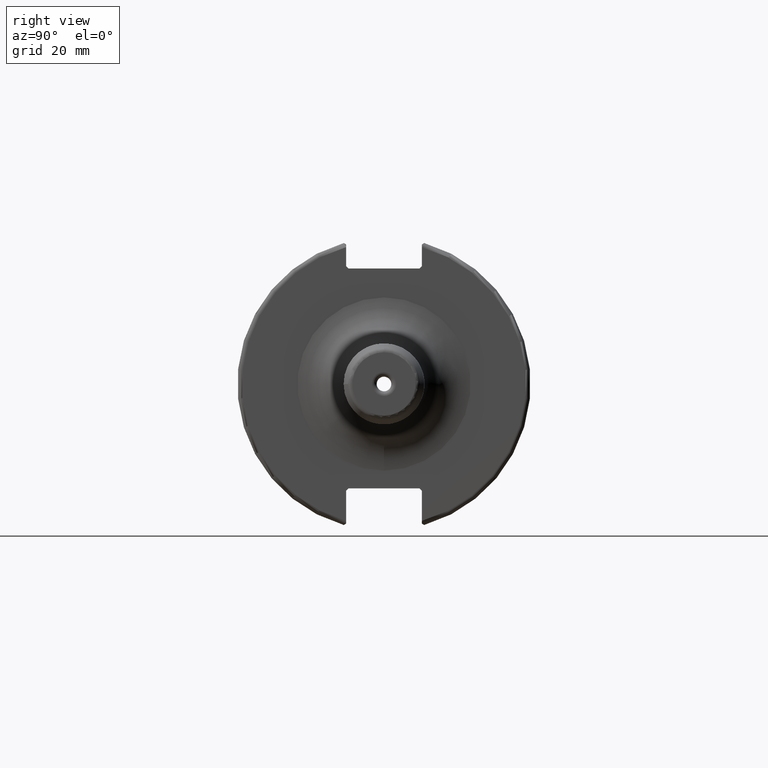
[diagram: clean part render]
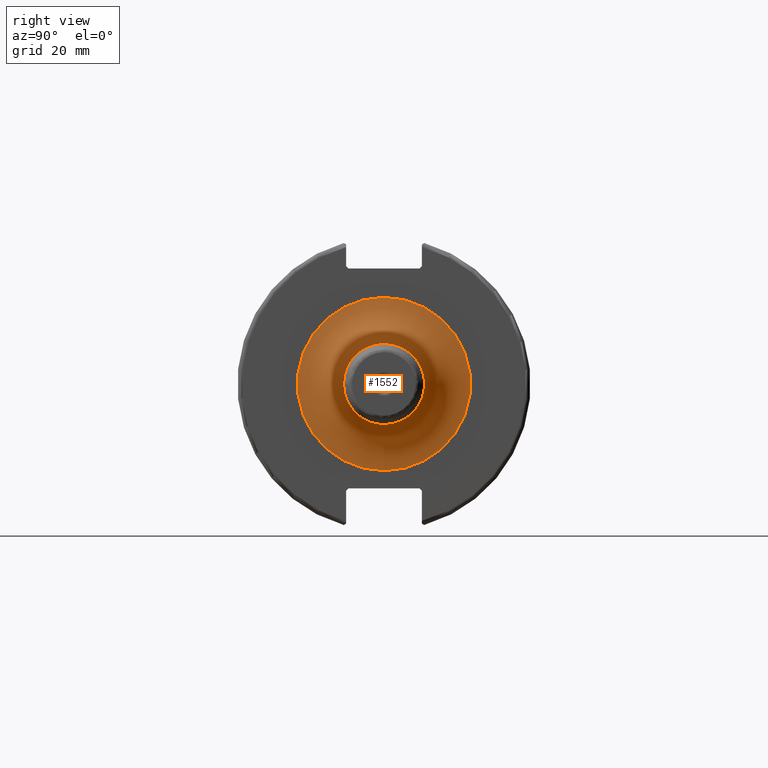
[diagram: same view with one face highlighted and labeled with its STEP entity id]
A machine part, right view. The second image highlights one B-rep face of the part: STEP entity #1552.
In plain terms, the highlighted toroidal blend (fillet) surface has major radius 18.763 mm and minor (blend) radius 10 mm.
Its self-contained STEP definition (entity closure, byte-faithful):
#376=FACE_OUTER_BOUND('',#468,.T.);
#468=EDGE_LOOP('',(#1090,#1091,#1092,#1093,#1094));
#578=CIRCLE('',#1679,8.763);
#579=CIRCLE('',#1680,8.763);
#580=CIRCLE('',#1682,10.);
#581=CIRCLE('',#1683,18.763);
#659=VERTEX_POINT('',#2408);
#660=VERTEX_POINT('',#2410);
#663=VERTEX_POINT('',#2453);
#826=EDGE_CURVE('',#660,#659,#578,.T.);
#827=EDGE_CURVE('',#659,#660,#579,.T.);
#830=EDGE_CURVE('',#660,#663,#580,.T.);
#831=EDGE_CURVE('',#663,#663,#581,.T.);
#1090=ORIENTED_EDGE('',*,*,#827,.T.);
#1091=ORIENTED_EDGE('',*,*,#830,.T.);
#1092=ORIENTED_EDGE('',*,*,#831,.T.);
#1093=ORIENTED_EDGE('',*,*,#830,.F.);
#1094=ORIENTED_EDGE('',*,*,#826,.T.);
#1538=TOROIDAL_SURFACE('',#1681,18.763,10.);
#1552=ADVANCED_FACE('',(#376),#1538,.F.);
#1679=AXIS2_PLACEMENT_3D('',#2411,#1892,#1893);
#1680=AXIS2_PLACEMENT_3D('',#2412,#1894,#1895);
#1681=AXIS2_PLACEMENT_3D('',#2452,#1896,#1897);
#1682=AXIS2_PLACEMENT_3D('',#2454,#1898,#1899);
#1683=AXIS2_PLACEMENT_3D('',#2455,#1900,#1901);
#1892=DIRECTION('center_axis',(-1.,0.,0.));
#1893=DIRECTION('ref_axis',(0.,-1.,-1.22464679914735E-16));
#1894=DIRECTION('center_axis',(-1.,0.,0.));
#1895=DIRECTION('ref_axis',(0.,-1.,-1.22464679914735E-16));
#1896=DIRECTION('center_axis',(-1.,0.,0.));
#1897=DIRECTION('ref_axis',(0.,0.,1.));
#1898=DIRECTION('center_axis',(0.,-1.,1.22464679914735E-16));
#1899=DIRECTION('ref_axis',(0.,-1.22464679914735E-16,-1.));
#1900=DIRECTION('center_axis',(1.,0.,0.));
#1901=DIRECTION('ref_axis',(0.,-1.,-1.22464679914735E-16));
#2408=CARTESIAN_POINT('',(29.05,-8.763,-1.07315799009283E-15));
#2410=CARTESIAN_POINT('',(29.05,-1.07315799009283E-15,-8.763));
#2411=CARTESIAN_POINT('Origin',(29.05,0.,0.));
#2412=CARTESIAN_POINT('Origin',(29.05,0.,0.));
#2452=CARTESIAN_POINT('Origin',(29.05,0.,0.));
#2453=CARTESIAN_POINT('',(19.05,-2.29780478924018E-15,-18.763));
#2454=CARTESIAN_POINT('Origin',(29.05,-2.29780478924018E-15,-18.763));
#2455=CARTESIAN_POINT('Origin',(19.05,0.,0.));